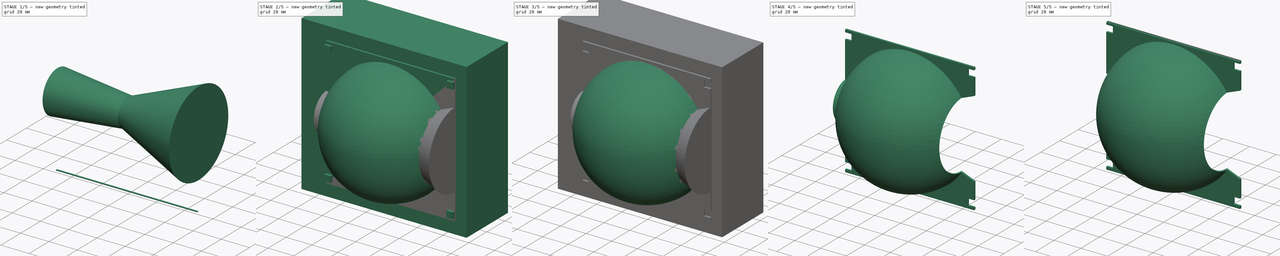
[diagram: build sequence overview — one tinted view per stage of 5, left to right]
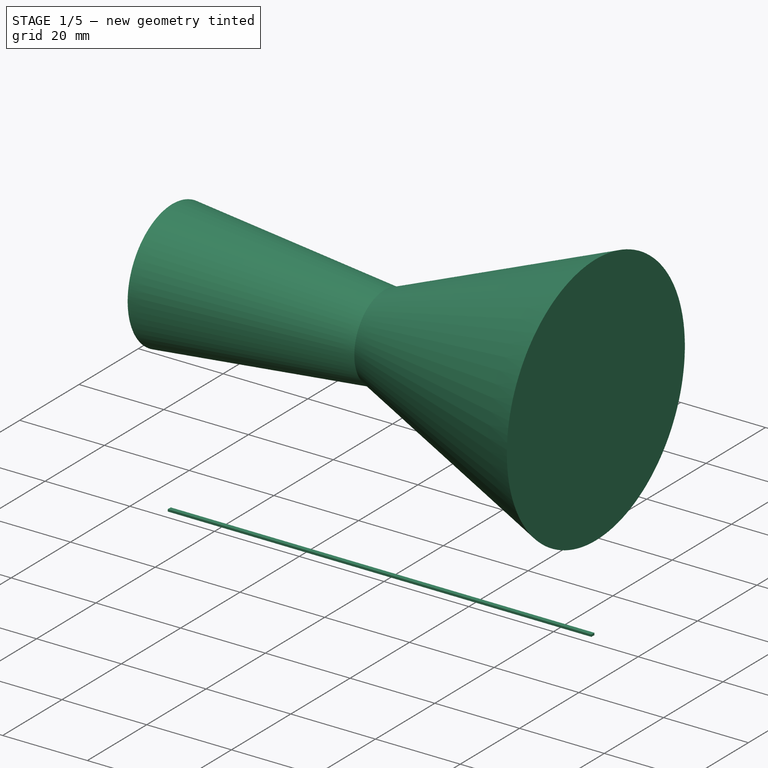
[diagram: stage 1 of 5 — iso view after this stage's code; geometry added in this stage tinted green]
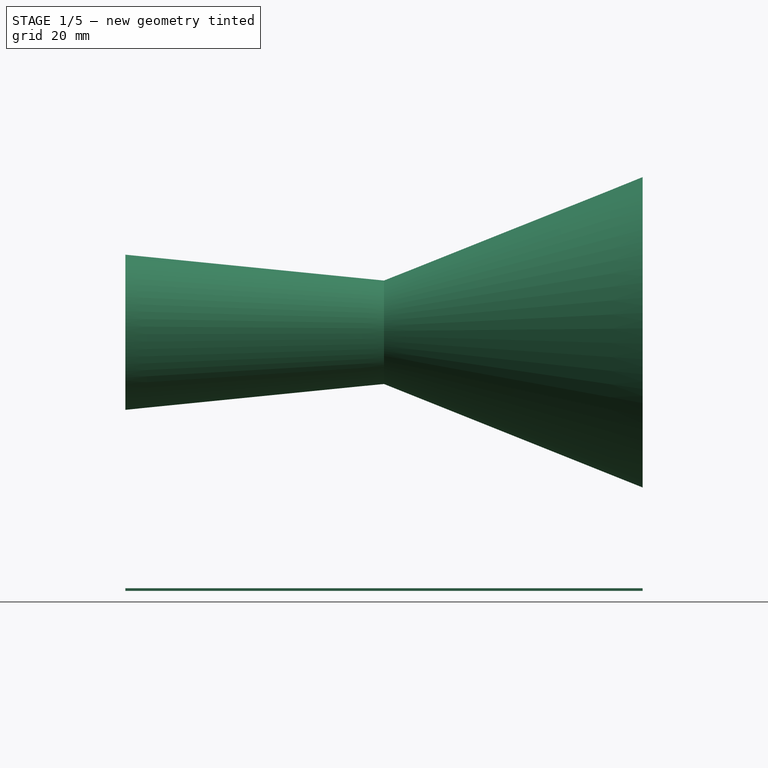
[diagram: stage 1 of 5 — front view after this stage's code; geometry added in this stage tinted green]
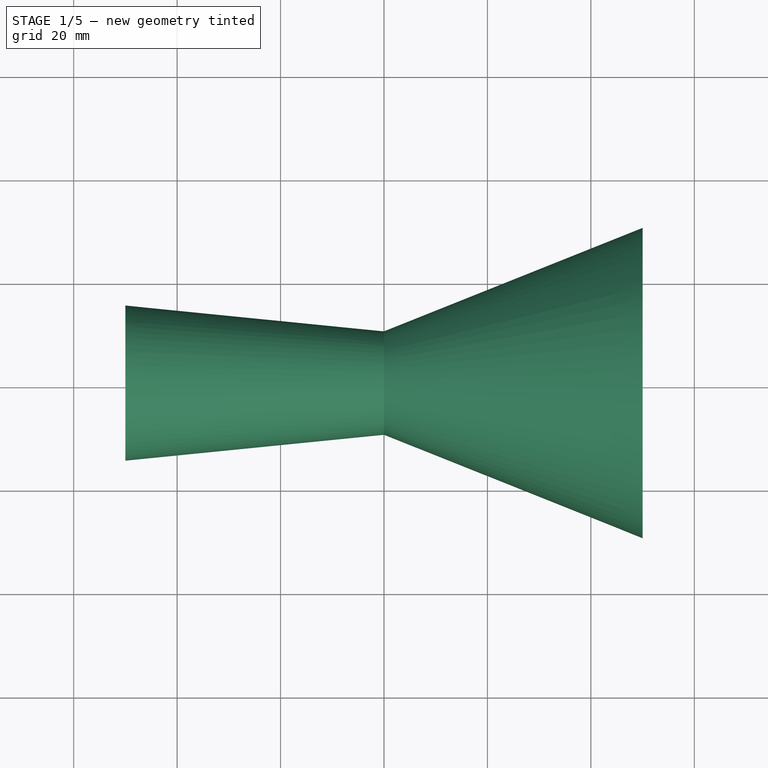
[diagram: stage 1 of 5 — top view after this stage's code; geometry added in this stage tinted green]
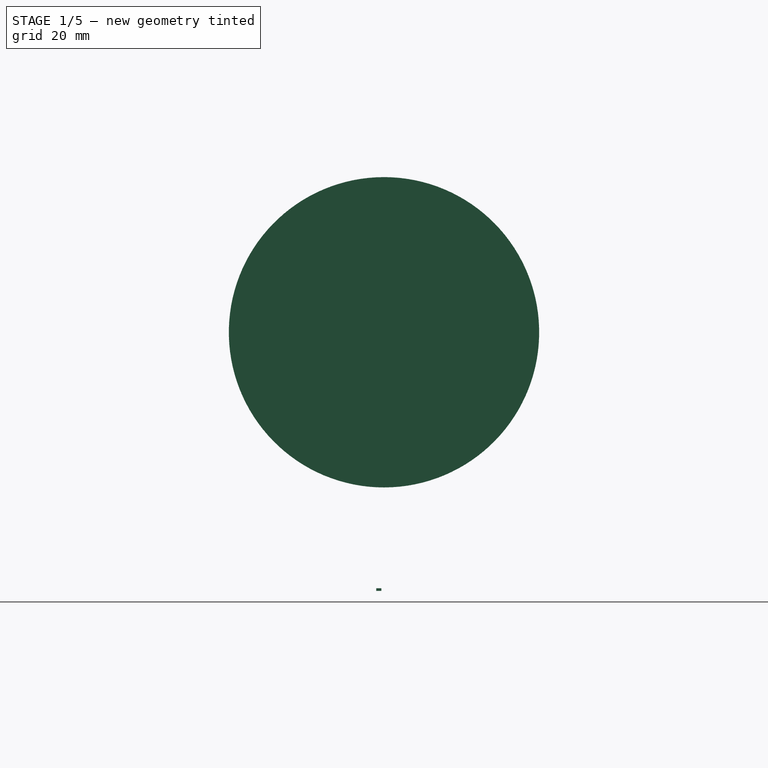
[diagram: stage 1 of 5 — right view after this stage's code; geometry added in this stage tinted green]
FCSTD DOCUMENT  (FreeCAD 1.0R38641 +468 (Git))
Label: margotta
License: All rights reserved
LicenseURL: https://en.wikipedia.org/wiki/All_rights_reserved
objects: Part::Cut×5, Sketcher::SketchObject×4, Part::Extrusion×4, Part::Sphere×2, Part::FeaturePython×2, Part::Cone×2, Part::Fuse×1, Part::Mirroring×1
note: 25 computed .brp shape members not serialized (recipe doc carries the construction recipe); baked Part::Feature solids carry a one-line shape summary decoded from their .brp

FEATURE [Part::Cone] Cone
  Angle = 360
  AttacherType = Attacher::AttachEngine3D
  Height = 50
  Placement = pos=(0,0,0) rot=(0,90,0;1.5708rad)
  Radius1 = 10
  Radius2 = 30
FEATURE [Part::Cone] Cone001
  Angle = 360
  AttacherType = Attacher::AttachEngine3D
  Height = 50
  Placement = pos=(0,0,0) rot=(0,100,0;4.71239rad)
  Radius1 = 10
  Radius2 = 15
FEATURE [Sketcher::SketchObject] Sketch003
  ArcFitTolerance = 1e-06
  AttachmentSupport = -> [Cut003]
  FullyConstrained = true
  MakeInternals = false
  MapMode = 5
  Placement = pos=(0,-1.5,-3e-16) rot=(1,0,0;1.5708rad)
  sketch-geometry (4):
    g0: LineSegment StartX=-50 StartY=-49.5 StartZ=0 EndX=-50 EndY=-50 EndZ=0
    g1: LineSegment StartX=-50 StartY=-50 StartZ=0 EndX=50 EndY=-50 EndZ=0
    g2: LineSegment StartX=50 StartY=-50 StartZ=0 EndX=50 EndY=-49.5 EndZ=0
    g3: LineSegment StartX=50 StartY=-49.5 StartZ=0 EndX=-50 EndY=-49.5 EndZ=0
  constraints (12):
    c: Coincident(g0,g1)
    c: Coincident(g1,g2)
    c: Coincident(g2,g3)
    c: Coincident(g3,g0)
    c: Vertical(g0)
    c: Vertical(g2)
    c: Horizontal(g1)
    c: Horizontal(g3)
    c: DistanceY(g0,g-1) = 50
    c: DistanceY(g0,g0) = 0.5
    c: DistanceX(g3,g3) = 100
    c: DistanceX(g-1,g1) = 50
FEATURE [Part::Extrusion] Extrude004
  Base = -> Sketch003
  Dir = (0,-1,2e-16)
  DirMode = 2
  FaceMakerClass = Part::FaceMakerBullseye
  FaceMakerMode = 3
  LengthFwd = 1
  LengthRev = 0
  Reversed = true
  Solid = true
  Symmetric = false
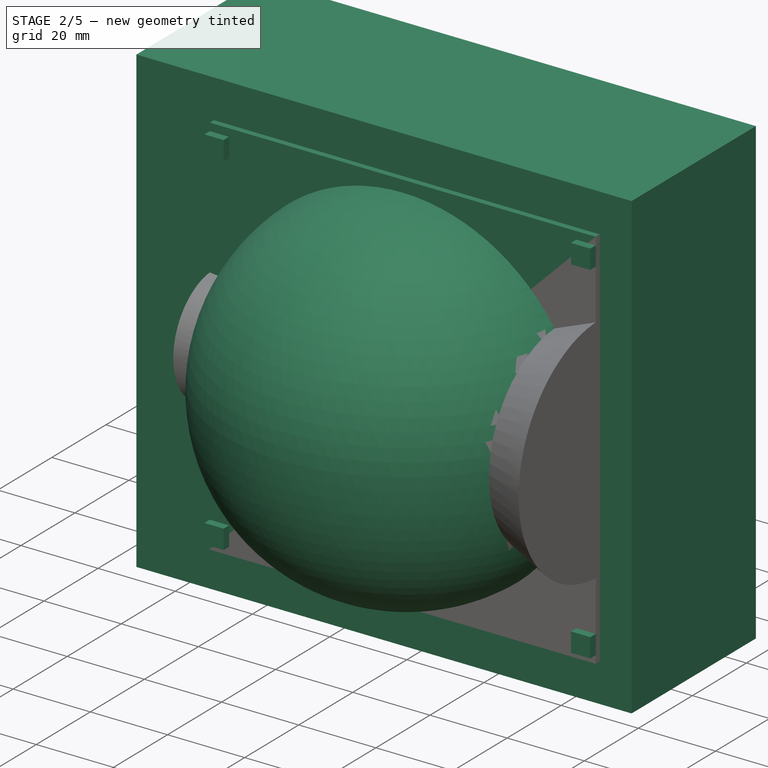
[diagram: stage 2 of 5 — iso view after this stage's code; geometry added in this stage tinted green]
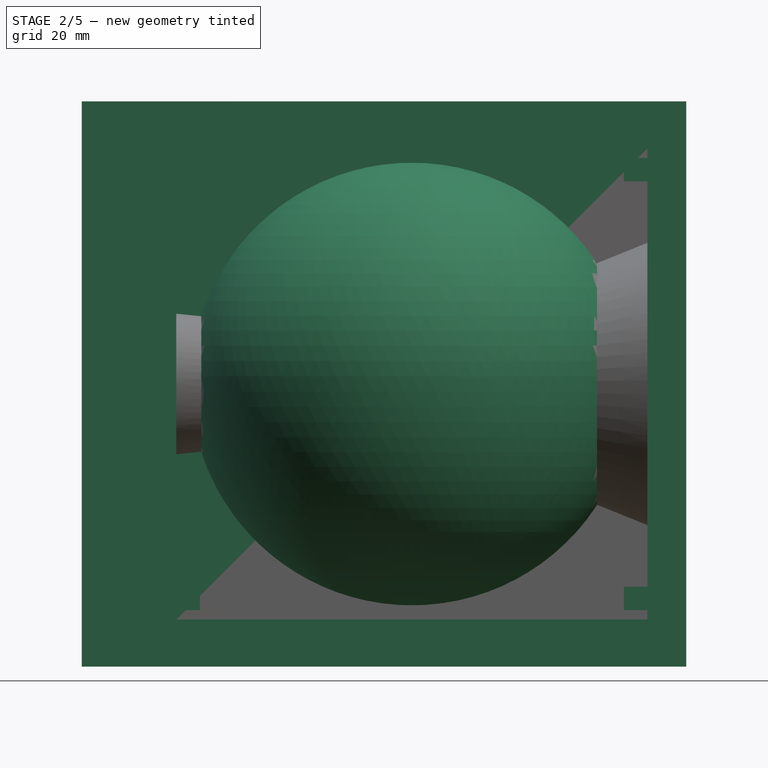
[diagram: stage 2 of 5 — front view after this stage's code; geometry added in this stage tinted green]
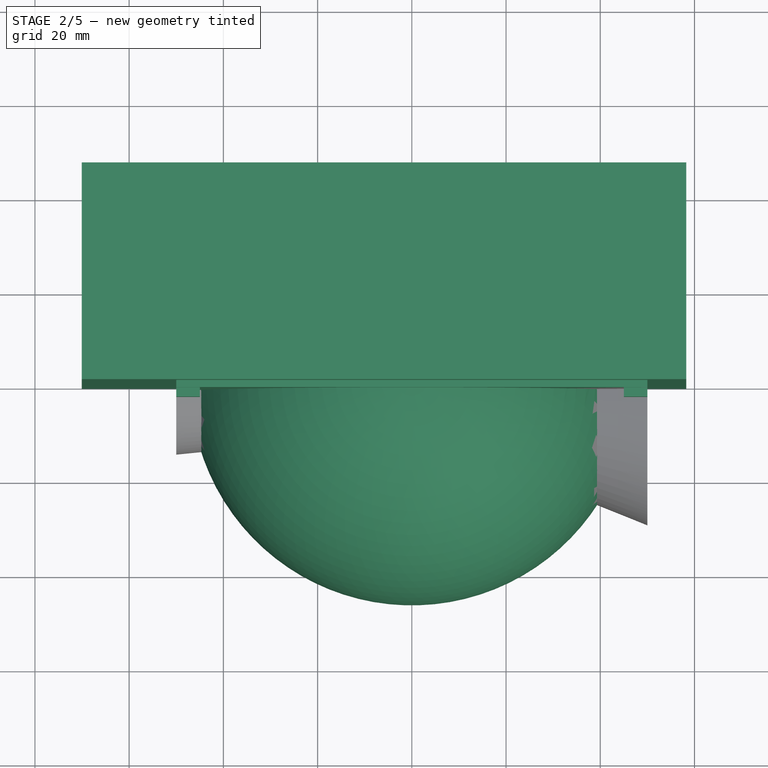
[diagram: stage 2 of 5 — top view after this stage's code; geometry added in this stage tinted green]
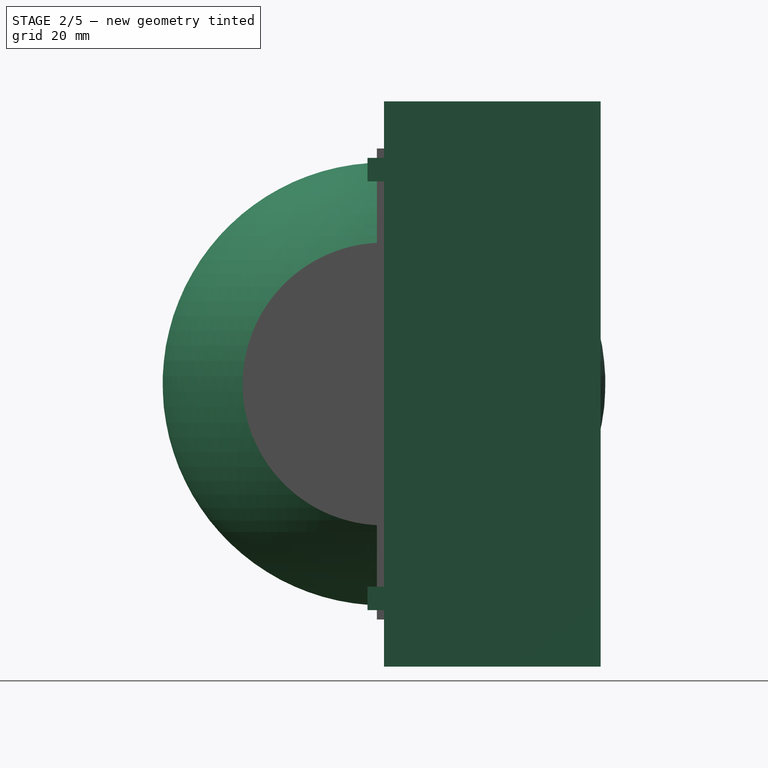
[diagram: stage 2 of 5 — right view after this stage's code; geometry added in this stage tinted green]
FEATURE [Sketcher::SketchObject] Sketch
  ArcFitTolerance = 1e-06
  FullyConstrained = true
  MakeInternals = false
  Placement = pos=(0,0,0) rot=(1,0,0;1.5708rad)
  sketch-geometry (4):
    g0: LineSegment StartX=-50 StartY=50 StartZ=0 EndX=-50 EndY=-50 EndZ=0
    g1: LineSegment StartX=-50 StartY=-50 StartZ=0 EndX=50 EndY=-50 EndZ=0
    g2: LineSegment StartX=50 StartY=-50 StartZ=0 EndX=50 EndY=50 EndZ=0
    g3: LineSegment StartX=50 StartY=50 StartZ=0 EndX=-50 EndY=50 EndZ=0
  constraints (12):
    c: Coincident(g0,g1)
    c: Coincident(g1,g2)
    c: Coincident(g2,g3)
    c: Coincident(g3,g0)
    c: Vertical(g0)
    c: Vertical(g2)
    c: Horizontal(g1)
    c: Horizontal(g3)
    c: DistanceX(g3,g3) = 100
    c: DistanceY(g0,g0) = 100
    c: DistanceX(g-1,g2) = 50
    c: DistanceY(g1,g-1) = 50
FEATURE [Part::Extrusion] Extrude
  Base = -> Sketch
  Dir = (0,-1,2e-16)
  DirMode = 2
  FaceMakerClass = Part::FaceMakerBullseye
  FaceMakerMode = 3
  LengthFwd = 3
  LengthRev = 0
  Solid = true
  Symmetric = true
FEATURE [Sketcher::SketchObject] Sketch001
  ArcFitTolerance = 1e-06
  AttachmentSupport = -> [Extrude]
  FullyConstrained = false
  MakeInternals = false
  MapMode = 5
  Placement = pos=(0,1.5,3e-16) rot=(0,0.707107,0.707107;3.14159rad)
  sketch-geometry (16):
    g0: LineSegment StartX=-50 StartY=48 StartZ=0 EndX=-50 EndY=43 EndZ=0
    g1: LineSegment StartX=-50 StartY=43 StartZ=0 EndX=-45 EndY=43 EndZ=0
    g2: LineSegment StartX=-45 StartY=43 StartZ=0 EndX=-45 EndY=48 EndZ=0
    g3: LineSegment StartX=-45 StartY=48 StartZ=0 EndX=-50 EndY=48 EndZ=0
    g4: LineSegment StartX=50 StartY=48 StartZ=0 EndX=50 EndY=43 EndZ=0
    g5: LineSegment StartX=50 StartY=43 StartZ=0 EndX=45 EndY=43 EndZ=0
    g6: LineSegment StartX=45 StartY=43 StartZ=0 EndX=45 EndY=48 EndZ=0
    g7: LineSegment StartX=45 StartY=48 StartZ=0 EndX=50 EndY=48 EndZ=0
    g8: LineSegment StartX=-50 StartY=-48 StartZ=0 EndX=-50 EndY=-43 EndZ=0
    g9: LineSegment StartX=-50 StartY=-43 StartZ=0 EndX=-45 EndY=-43 EndZ=0
    g10: LineSegment StartX=-45 StartY=-43 StartZ=0 EndX=-45 EndY=-48 EndZ=0
    g11: LineSegment StartX=-45 StartY=-48 StartZ=0 EndX=-50 EndY=-48 EndZ=0
    g12: LineSegment StartX=50 StartY=-48 StartZ=0 EndX=50 EndY=-43 EndZ=0
    g13: LineSegment StartX=50 StartY=-43 StartZ=0 EndX=45 EndY=-43 EndZ=0
    g14: LineSegment StartX=45 StartY=-43 StartZ=0 EndX=45 EndY=-48 EndZ=0
    g15: LineSegment StartX=45 StartY=-48 StartZ=0 EndX=50 EndY=-48 EndZ=0
  constraints (39):
    c: Coincident(g0,g1)
    c: Coincident(g1,g2)
    c: Coincident(g2,g3)
    c: Coincident(g3,g0)
    c: Vertical(g0)
    c: Vertical(g2)
    c: Horizontal(g1)
    c: Horizontal(g3)
    c: DistanceX(g0,g-1) = 50
    c: DistanceY(g-1,g0) = 48
    c: Equal(g0,g3)
    c: DistanceX(g3,g3) = 5
    c: Coincident(g4,g5)
    c: Coincident(g5,g6)
    c: Coincident(g6,g7)
    c: Coincident(g7,g4)
    c: Vertical(g4)
    c: Vertical(g6)
    c: Horizontal(g5)
    c: Horizontal(g7)
    c: Equal(g4,g7)
    c: Coincident(g8,g9)
    c: Coincident(g9,g10)
    c: Coincident(g10,g11)
    c: Coincident(g11,g8)
    c: Vertical(g8)
    c: Vertical(g10)
    c: Horizontal(g9)
    c: Horizontal(g11)
    c: Equal(g8,g11)
    c: Coincident(g12,g13)
    c: Coincident(g13,g14)
    c: Coincident(g14,g15)
    c: Coincident(g15,g12)
    c: Vertical(g12)
    c: Vertical(g14)
    c: Horizontal(g13)
    c: Horizontal(g15)
    c: Equal(g12,g15)
FEATURE [Part::Extrusion] Extrude002
  Base = -> Sketch001
  Dir = (0,1,-2e-16)
  DirMode = 2
  FaceMakerClass = Part::FaceMakerBullseye
  FaceMakerMode = 3
  LengthFwd = 10
  LengthRev = 0
  Solid = true
  Symmetric = true
FEATURE [Sketcher::SketchObject] Sketch002
  ArcFitTolerance = 1e-06
  FullyConstrained = false
  MakeInternals = false
  sketch-geometry (4):
    g0: LineSegment StartX=-70.0663 StartY=0 StartZ=0 EndX=58.2562 EndY=0 EndZ=0
    g1: LineSegment StartX=58.2562 StartY=0 StartZ=0 EndX=58.2562 EndY=45.9904 EndZ=0
    g2: LineSegment StartX=58.2562 StartY=45.9904 StartZ=0 EndX=-70.0663 EndY=45.9904 EndZ=0
    g3: LineSegment StartX=-70.0663 StartY=45.9904 StartZ=0 EndX=-70.0663 EndY=0 EndZ=0
  constraints (9):
    c: Coincident(g0,g1)
    c: Coincident(g1,g2)
    c: Coincident(g2,g3)
    c: Coincident(g3,g0)
    c: Horizontal(g0)
    c: Horizontal(g2)
    c: Vertical(g1)
    c: Vertical(g3)
    c: PointOnObject(g0,g-1)
FEATURE [Part::Extrusion] Extrude003
  Base = -> Sketch002
  Dir = (0,0,1)
  DirMode = 2
  FaceMakerClass = Part::FaceMakerBullseye
  FaceMakerMode = 3
  LengthFwd = 120
  LengthRev = 0
  Solid = true
  Symmetric = true
FEATURE [Part::Sphere] Sphere001
  Angle1 = -90
  Angle2 = 90
  Angle3 = 360
  AttacherType = Attacher::AttachEngine3D
  Radius = 47
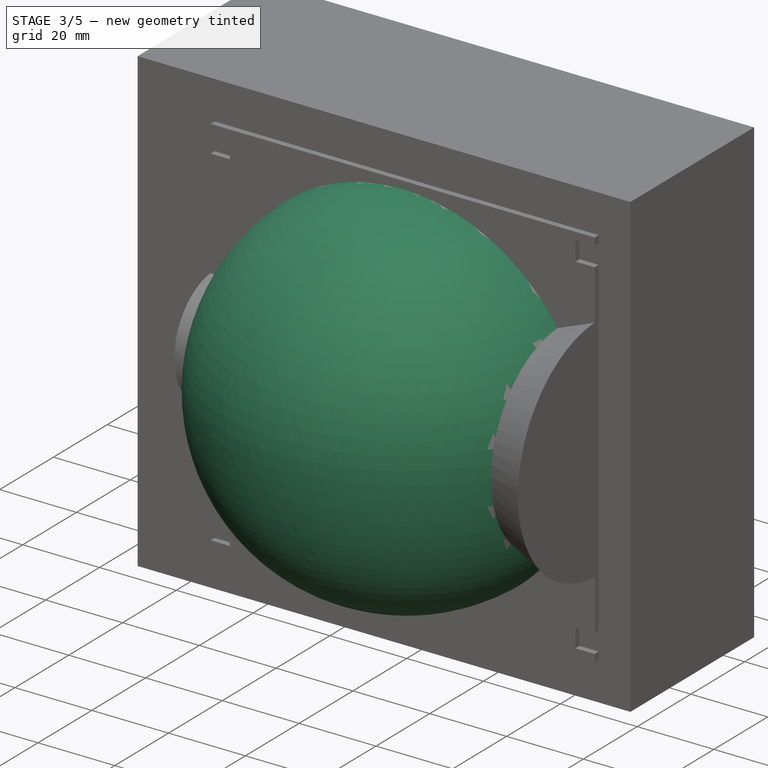
[diagram: stage 3 of 5 — iso view after this stage's code; geometry added in this stage tinted green]
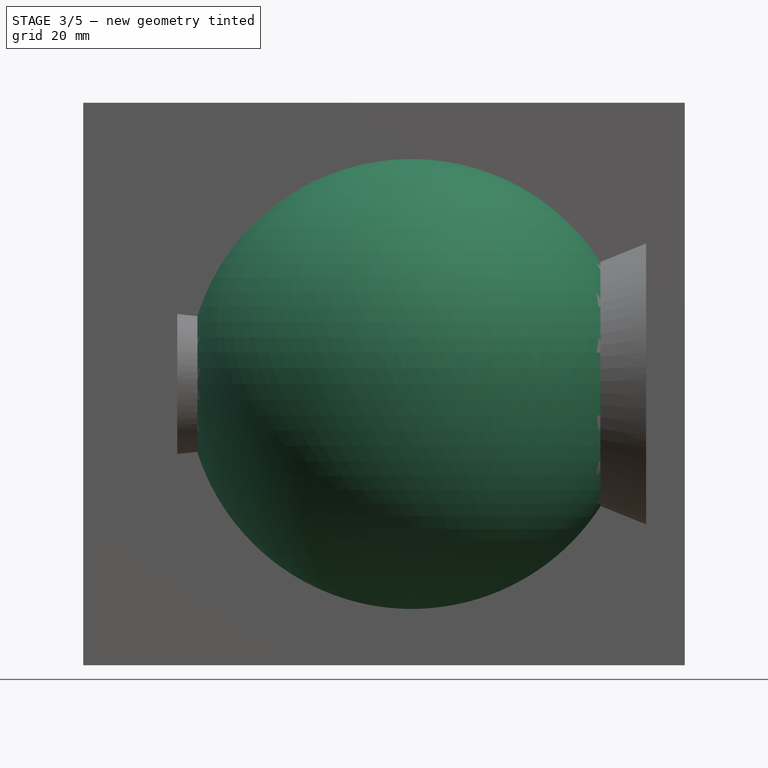
[diagram: stage 3 of 5 — front view after this stage's code; geometry added in this stage tinted green]
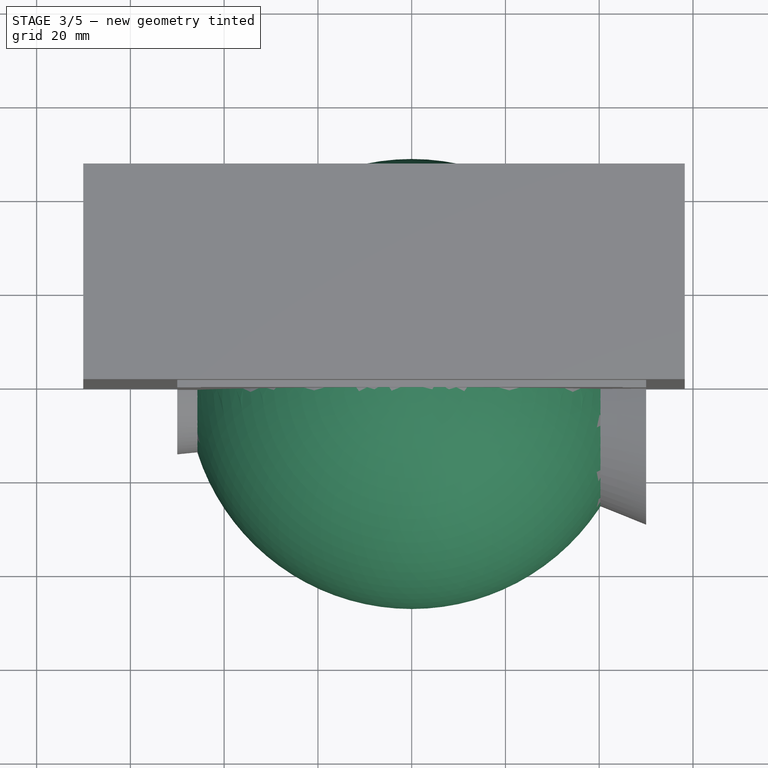
[diagram: stage 3 of 5 — top view after this stage's code; geometry added in this stage tinted green]
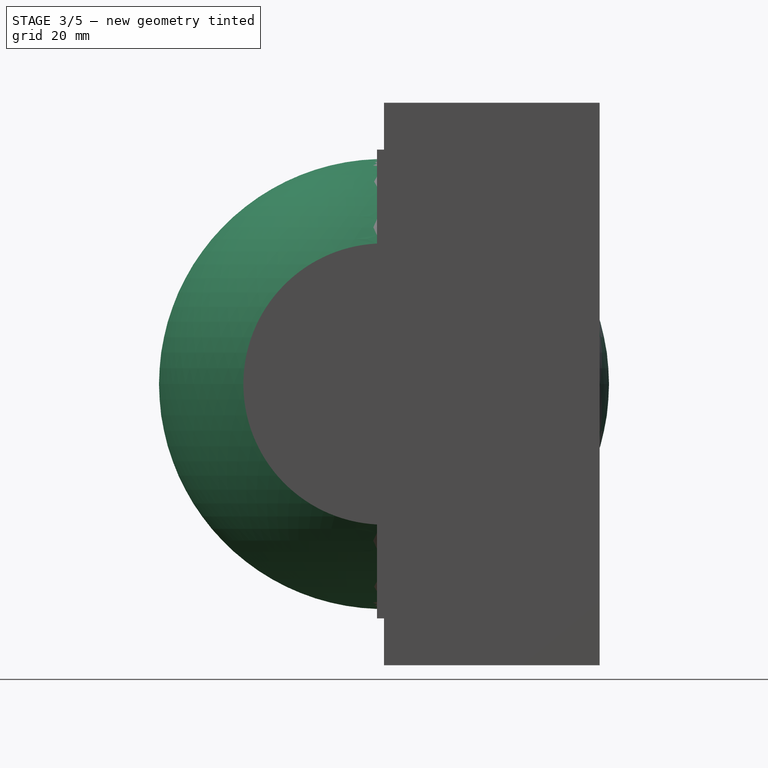
[diagram: stage 3 of 5 — right view after this stage's code; geometry added in this stage tinted green]
FEATURE [Part::Sphere] Sphere
  Angle1 = -90
  Angle2 = 90
  Angle3 = 360
  AttacherType = Attacher::AttachEngine3D
  Radius = 48
FEATURE [Part::Cut] Cut
  Base = -> Extrude
  Tool = -> Extrude002
FEATURE [Part::Fuse] Fusion
  Base = -> Sphere
  Tool = -> Cut
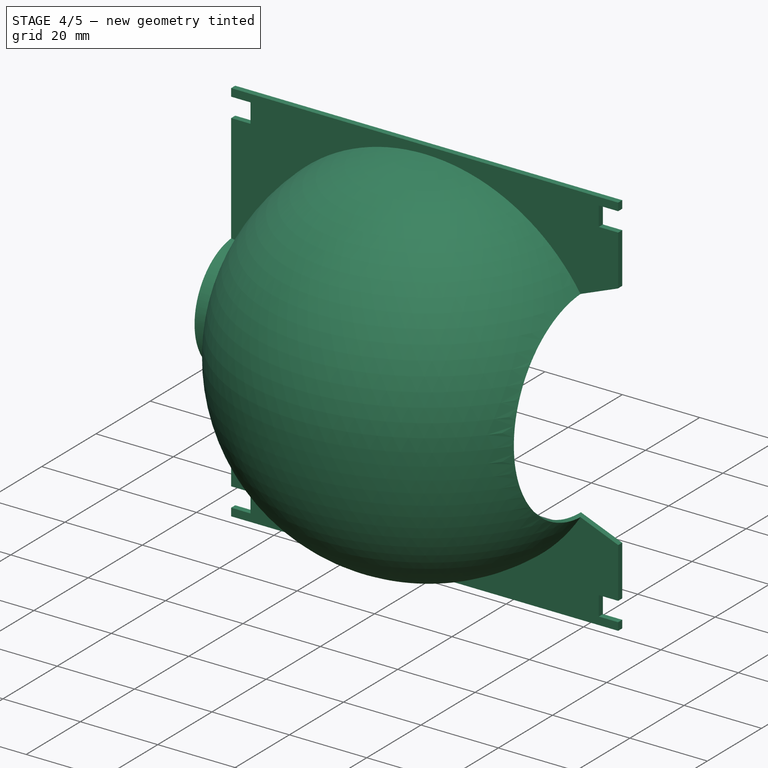
[diagram: stage 4 of 5 — iso view after this stage's code; geometry added in this stage tinted green]
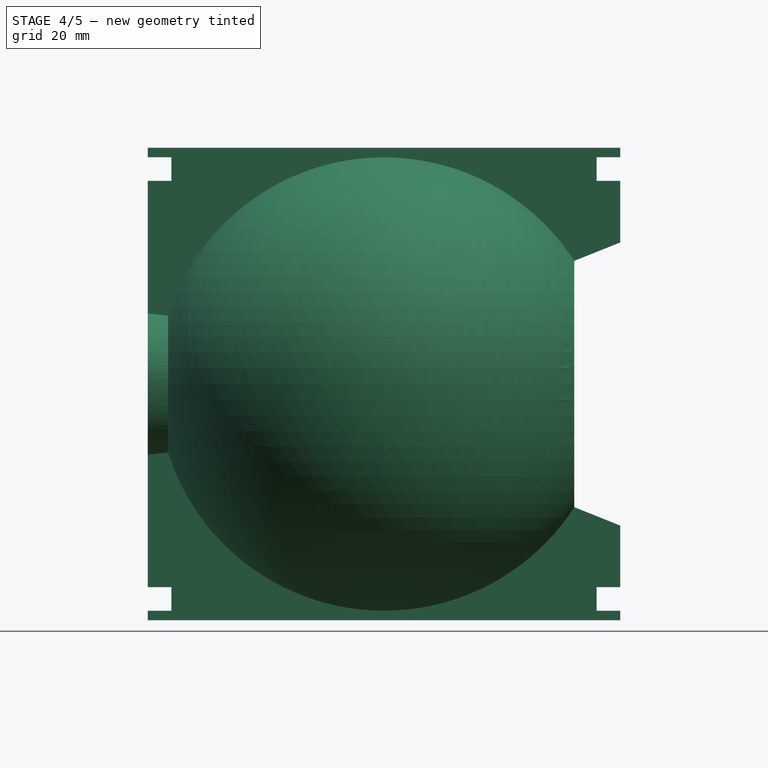
[diagram: stage 4 of 5 — front view after this stage's code; geometry added in this stage tinted green]
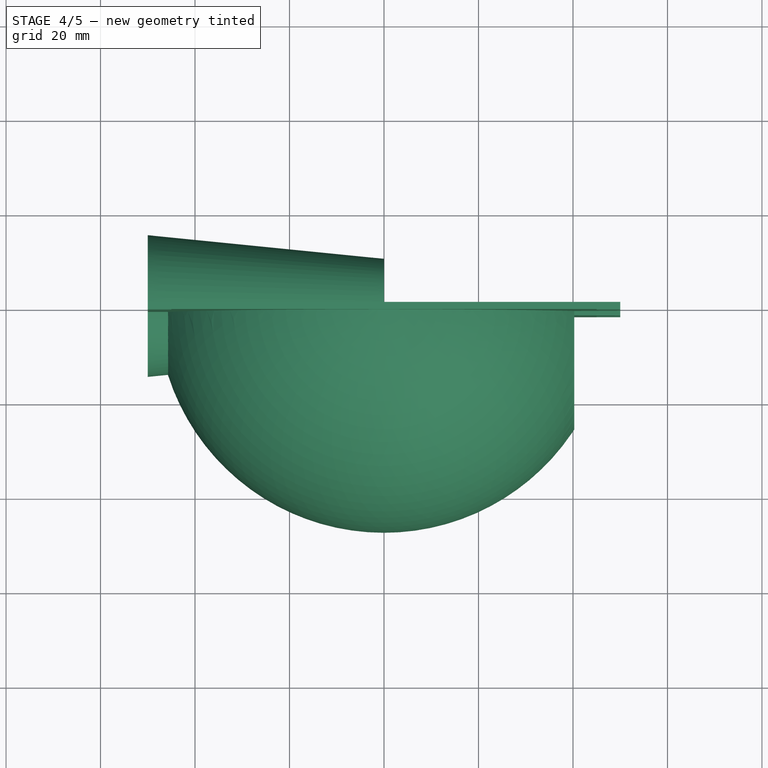
[diagram: stage 4 of 5 — top view after this stage's code; geometry added in this stage tinted green]
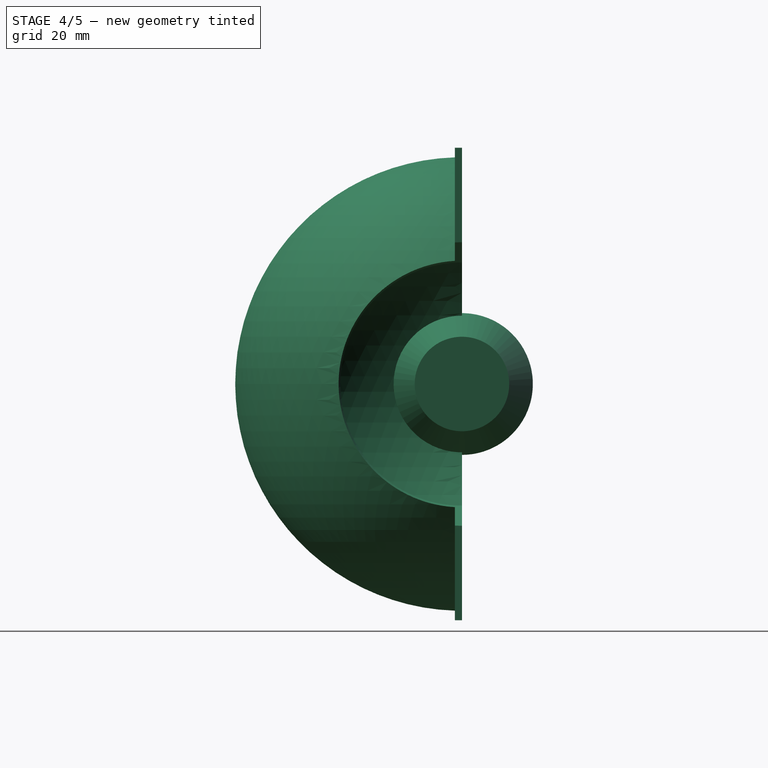
[diagram: stage 4 of 5 — right view after this stage's code; geometry added in this stage tinted green]
FEATURE [Part::FeaturePython] Slice  # WARN: FeaturePython — macro-defined, semantics opaque (R4)
  Base = -> Fusion
  Mode = 1
  Tolerance = 0
  Tools = -> [Extrude003]
FEATURE [Part::FeaturePython] Slice_child0  label="Slice.0"  # WARN: FeaturePython — macro-defined, semantics opaque (R4)
  Base = -> Slice
  FilterType = 1
  Invert = false
  OverrideMaxVal = 0
  WindowFrom = 80
  WindowTo = 100
  items = 0
FEATURE [Part::Cut] Cut001
  Base = -> Slice_child0
  Tool = -> Sphere001
FEATURE [Part::Cut] Cut002
  Base = -> Cut001
  Tool = -> Cone
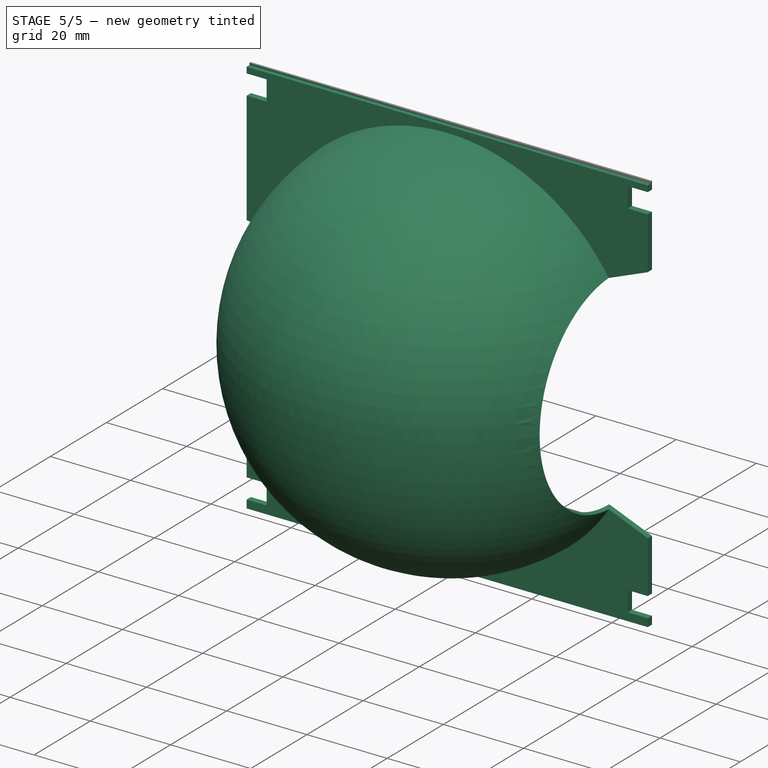
[diagram: stage 5 of 5 — iso view after this stage's code; geometry added in this stage tinted green]
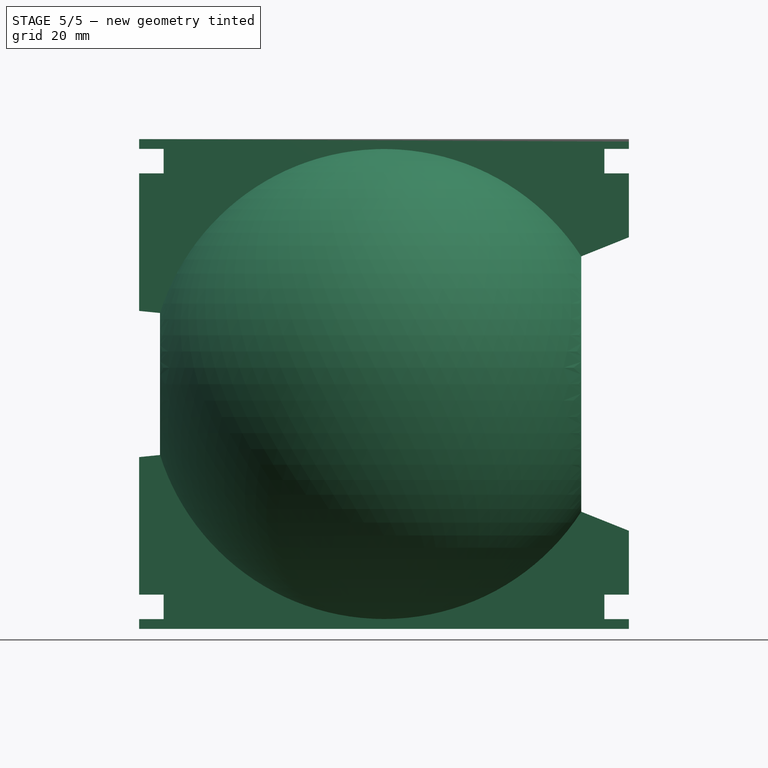
[diagram: stage 5 of 5 — front view after this stage's code; geometry added in this stage tinted green]
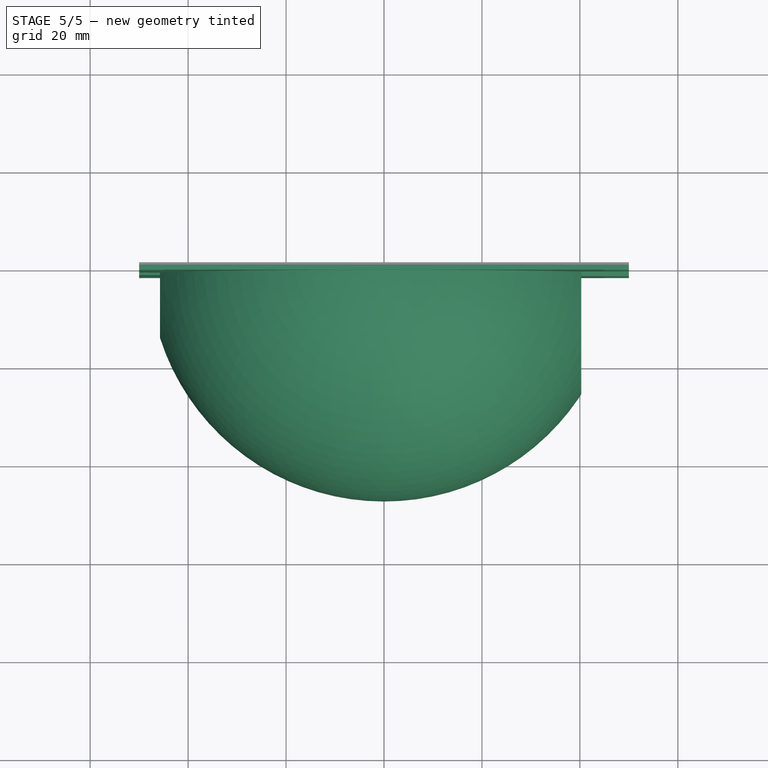
[diagram: stage 5 of 5 — top view after this stage's code; geometry added in this stage tinted green]
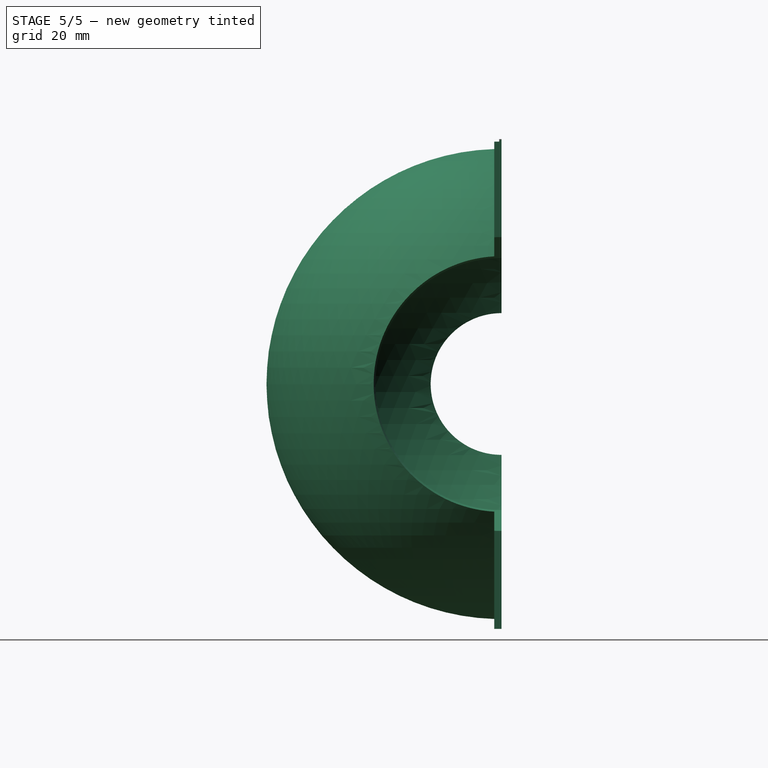
[diagram: stage 5 of 5 — right view after this stage's code; geometry added in this stage tinted green]
FEATURE [Part::Cut] Cut003
  Base = -> Cut002
  Tool = -> Cone001
FEATURE [Part::Cut] Cut004
  Base = -> Cut003
  Tool = -> Extrude004
FEATURE [Part::Mirroring] Part__Mirroring  label="Cut004 (Mirror #1)"
  Base = (0,0,-50)
  Normal = (0,0,1)
  Source = -> Cut004
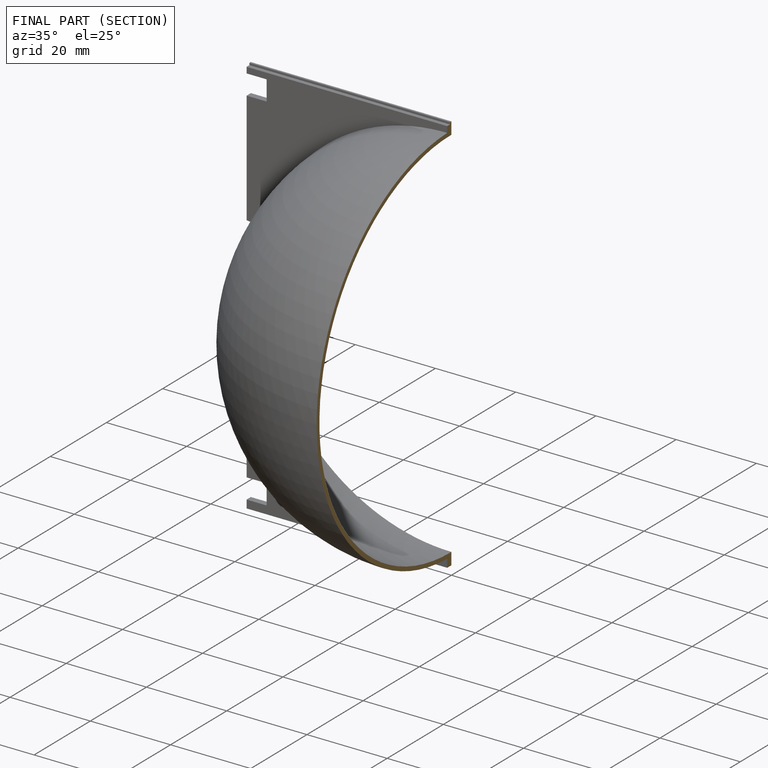
[diagram: finished part — half-section view (interior)]
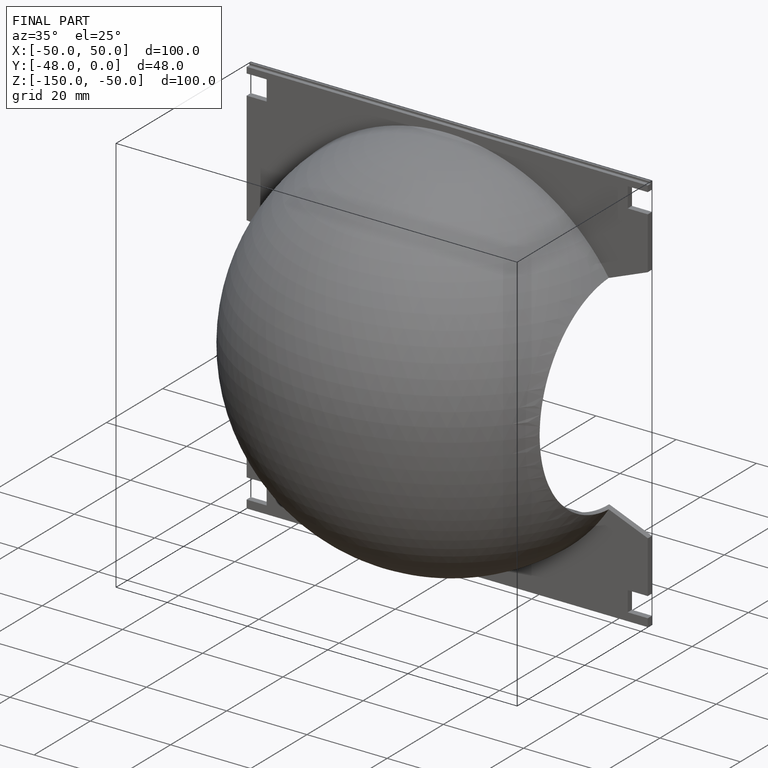
[diagram: finished part — iso view with bounding-box wireframe]
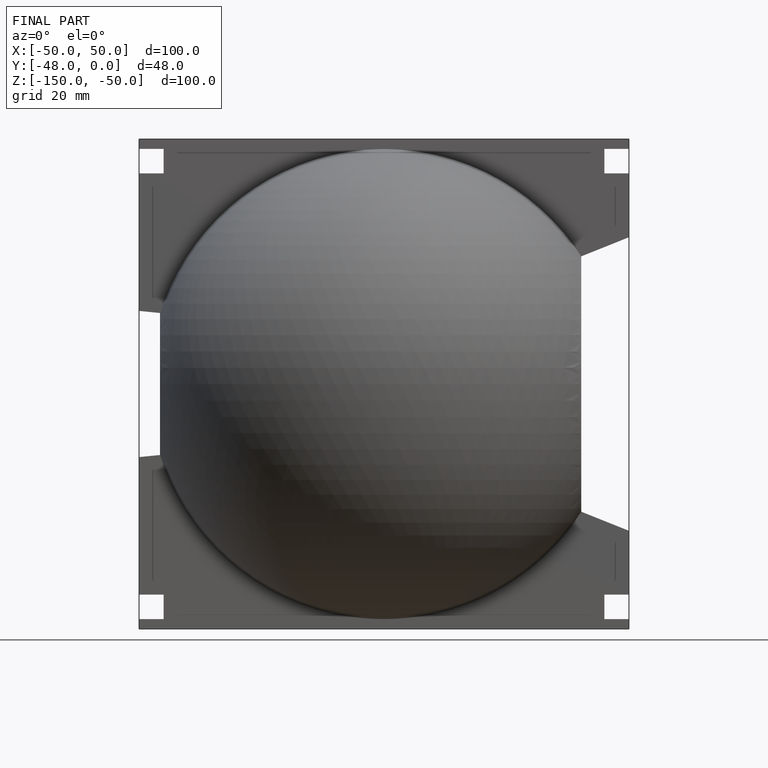
[diagram: finished part — front view with bounding-box wireframe]
